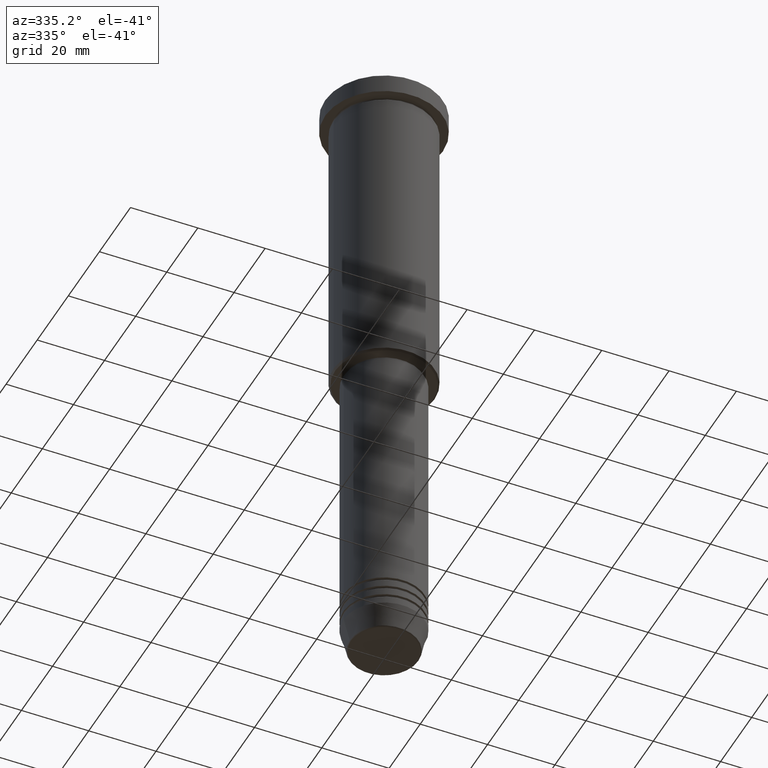
[diagram: clean part render]
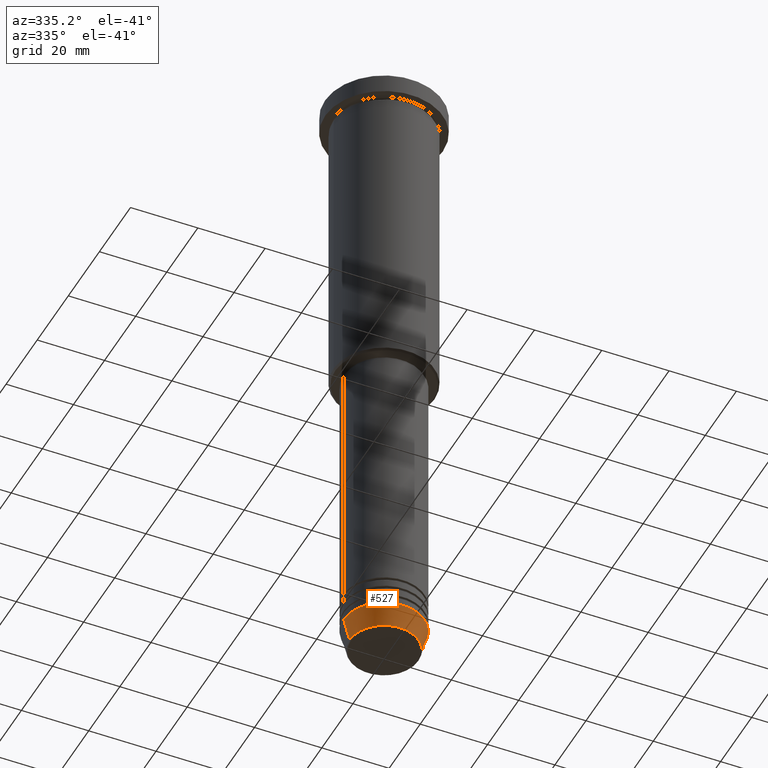
[diagram: same view with one face highlighted and labeled with its STEP entity id]
A machine part, auxiliary view. The second image highlights one B-rep face of the part: STEP entity #527.
In plain terms, the highlighted conical surface has half-angle 15 deg.
Its self-contained STEP definition (entity closure, byte-faithful):
#11 = CARTESIAN_POINT ( 'NONE',  ( 10.22365507213719660, 0.000000000000000000, -190.6294095225512706 ) ) ;
#28 = DIRECTION ( 'NONE',  ( 1.000000000000000000, 0.000000000000000000, 0.000000000000000000 ) ) ;
#62 = CARTESIAN_POINT ( 'NONE',  ( 0.000000000000000000, 0.000000000000000000, -184.0000000000000284 ) ) ;
#92 = VERTEX_POINT ( 'NONE', #769 ) ;
#150 = CARTESIAN_POINT ( 'NONE',  ( -12.00000000000000000, 1.469576158976823947E-15, -184.0000000000000284 ) ) ;
#221 = DIRECTION ( 'NONE',  ( 0.2588190451025213501, 0.000000000000000000, 0.9659258262890680902 ) ) ;
#232 = LINE ( 'NONE', #150, #951 ) ;
#243 = FACE_OUTER_BOUND ( 'NONE', #822, .T. ) ;
#259 = DIRECTION ( 'NONE',  ( -0.000000000000000000, -0.000000000000000000, 1.000000000000000000 ) ) ;
#265 = EDGE_CURVE ( 'NONE', #857, #576, #840, .T. ) ;
#385 = EDGE_CURVE ( 'NONE', #1107, #576, #1078, .T. ) ;
#407 = CIRCLE ( 'NONE', #854, 10.22365507213719660 ) ;
#504 = DIRECTION ( 'NONE',  ( -0.2588190451025213501, 3.169619151431772337E-17, 0.9659258262890680902 ) ) ;
#527 = ADVANCED_FACE ( 'NONE', ( #243 ), #993, .T. ) ;
#532 = EDGE_CURVE ( 'NONE', #92, #1107, #232, .T. ) ;
#575 = DIRECTION ( 'NONE',  ( -0.000000000000000000, -0.000000000000000000, 1.000000000000000000 ) ) ;
#576 = VERTEX_POINT ( 'NONE', #694 ) ;
#586 = CARTESIAN_POINT ( 'NONE',  ( 0.000000000000000000, 0.000000000000000000, -184.0000000000000284 ) ) ;
#686 = AXIS2_PLACEMENT_3D ( 'NONE', #62, #575, #867 ) ;
#690 = ORIENTED_EDGE ( 'NONE', *, *, #265, .T. ) ;
#694 = CARTESIAN_POINT ( 'NONE',  ( 12.00000000000000000, 0.000000000000000000, -184.0000000000000284 ) ) ;
#700 = ORIENTED_EDGE ( 'NONE', *, *, #385, .F. ) ;
#706 = ORIENTED_EDGE ( 'NONE', *, *, #1034, .T. ) ;
#718 = CARTESIAN_POINT ( 'NONE',  ( -12.00000000000000000, 1.469576158976823947E-15, -184.0000000000000284 ) ) ;
#747 = CARTESIAN_POINT ( 'NONE',  ( 12.00000000000000000, 0.000000000000000000, -184.0000000000000284 ) ) ;
#763 = AXIS2_PLACEMENT_3D ( 'NONE', #586, #259, #1026 ) ;
#769 = CARTESIAN_POINT ( 'NONE',  ( -10.22365507213719837, 1.360806402472383336E-15, -190.6294095225512706 ) ) ;
#822 = EDGE_LOOP ( 'NONE', ( #1001, #706, #690, #700 ) ) ;
#840 = LINE ( 'NONE', #747, #1182 ) ;
#854 = AXIS2_PLACEMENT_3D ( 'NONE', #1180, #978, #28 ) ;
#857 = VERTEX_POINT ( 'NONE', #11 ) ;
#867 = DIRECTION ( 'NONE',  ( 1.000000000000000000, 0.000000000000000000, 0.000000000000000000 ) ) ;
#951 = VECTOR ( 'NONE', #504, 1000.000000000000000 ) ;
#978 = DIRECTION ( 'NONE',  ( -0.000000000000000000, -0.000000000000000000, 1.000000000000000000 ) ) ;
#993 = CONICAL_SURFACE ( 'NONE', #763, 12.00000000000000000, 0.2617993877991500740 ) ;
#1001 = ORIENTED_EDGE ( 'NONE', *, *, #532, .F. ) ;
#1026 = DIRECTION ( 'NONE',  ( 1.000000000000000000, 0.000000000000000000, 0.000000000000000000 ) ) ;
#1034 = EDGE_CURVE ( 'NONE', #92, #857, #407, .T. ) ;
#1078 = CIRCLE ( 'NONE', #686, 12.00000000000000000 ) ;
#1107 = VERTEX_POINT ( 'NONE', #718 ) ;
#1180 = CARTESIAN_POINT ( 'NONE',  ( 0.000000000000000000, 0.000000000000000000, -190.6294095225512706 ) ) ;
#1182 = VECTOR ( 'NONE', #221, 1000.000000000000000 ) ;